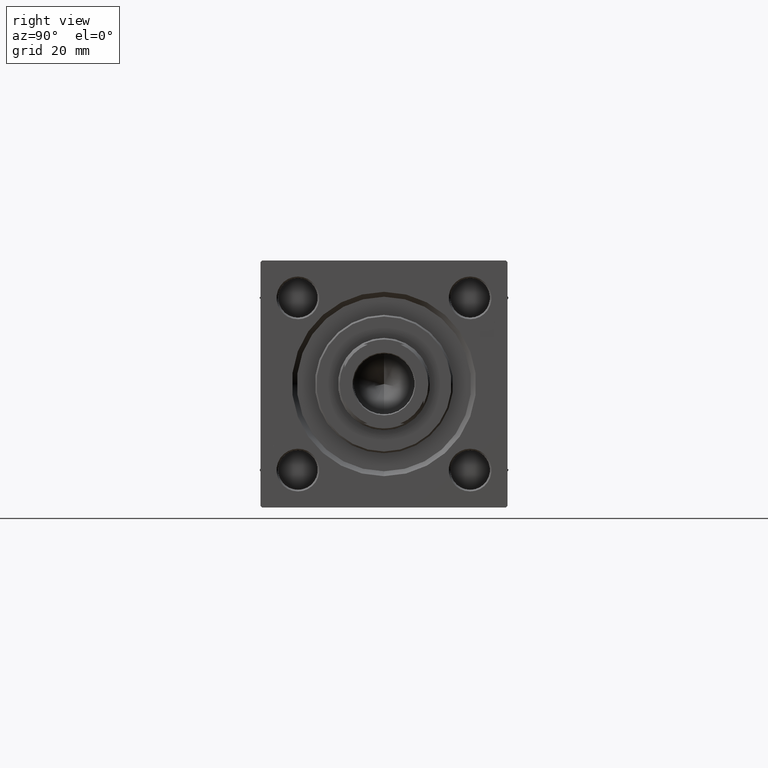
[diagram: clean part render]
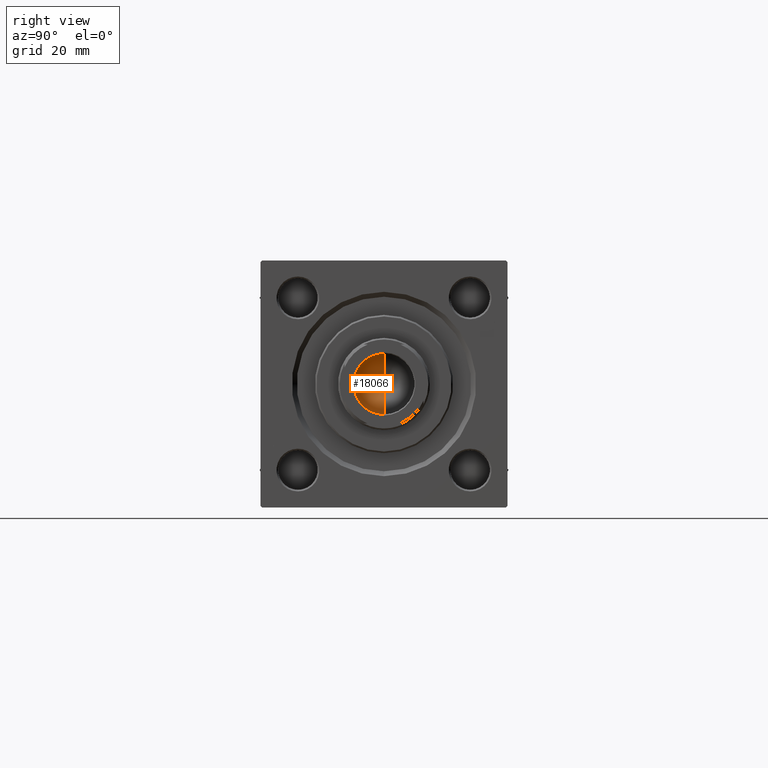
[diagram: same view with one face highlighted and labeled with its STEP entity id]
A machine part, right view. The second image highlights one B-rep face of the part: STEP entity #18066.
In plain terms, the highlighted conical surface has half-angle 59 deg.
Its self-contained STEP definition (entity closure, byte-faithful):
#1979 = CARTESIAN_POINT ( 'NONE',  ( -9.249999999999994671, 1.132798289211300909E-15, 107.0000000000000142 ) ) ;
#2951 = EDGE_CURVE ( 'NONE', #29311, #38357, #19789, .T. ) ;
#4326 = DIRECTION ( 'NONE',  ( 1.000000000000000000, 0.000000000000000000, 0.000000000000000000 ) ) ;
#5658 = DIRECTION ( 'NONE',  ( 1.000000000000000000, 0.000000000000000000, 0.000000000000000000 ) ) ;
#8461 = VECTOR ( 'NONE', #36754, 1000.000000000000000 ) ;
#8473 = CARTESIAN_POINT ( 'NONE',  ( -1.063698371622866236E-14, 0.000000000000000000, 101.4420392739950785 ) ) ;
#9361 = CARTESIAN_POINT ( 'NONE',  ( -9.249999999999994671, 1.132798289211300909E-15, 107.0000000000000142 ) ) ;
#9593 = DIRECTION ( 'NONE',  ( 0.8571673007021117785, 0.000000000000000000, 0.5150380749100550437 ) ) ;
#10485 = ORIENTED_EDGE ( 'NONE', *, *, #48382, .T. ) ;
#13478 = VECTOR ( 'NONE', #9593, 1000.000000000000000 ) ;
#16349 = DIRECTION ( 'NONE',  ( -0.000000000000000000, -0.000000000000000000, 1.000000000000000000 ) ) ;
#16445 = VERTEX_POINT ( 'NONE', #9361 ) ;
#16922 = ORIENTED_EDGE ( 'NONE', *, *, #44727, .F. ) ;
#18066 = ADVANCED_FACE ( 'NONE', ( #20914 ), #45442, .F. ) ;
#19789 = LINE ( 'NONE', #35253, #13478 ) ;
#19853 = ORIENTED_EDGE ( 'NONE', *, *, #2951, .T. ) ;
#20762 = CIRCLE ( 'NONE', #41005, 9.249999999999994671 ) ;
#20914 = FACE_OUTER_BOUND ( 'NONE', #46101, .T. ) ;
#23587 = AXIS2_PLACEMENT_3D ( 'NONE', #32823, #16349, #5658 ) ;
#28429 = CARTESIAN_POINT ( 'NONE',  ( 0.000000000000000000, 0.000000000000000000, 107.0000000000000142 ) ) ;
#28729 = CARTESIAN_POINT ( 'NONE',  ( 9.249999999999994671, 0.000000000000000000, 107.0000000000000142 ) ) ;
#29311 = VERTEX_POINT ( 'NONE', #8473 ) ;
#32823 = CARTESIAN_POINT ( 'NONE',  ( 0.000000000000000000, 0.000000000000000000, 107.0000000000000142 ) ) ;
#35253 = CARTESIAN_POINT ( 'NONE',  ( 9.249999999999994671, 0.000000000000000000, 107.0000000000000142 ) ) ;
#36754 = DIRECTION ( 'NONE',  ( -0.8571673007021117785, 1.049727191138617956E-16, 0.5150380749100550437 ) ) ;
#38357 = VERTEX_POINT ( 'NONE', #28729 ) ;
#40560 = LINE ( 'NONE', #1979, #8461 ) ;
#41005 = AXIS2_PLACEMENT_3D ( 'NONE', #28429, #43646, #4326 ) ;
#43646 = DIRECTION ( 'NONE',  ( -0.000000000000000000, -0.000000000000000000, 1.000000000000000000 ) ) ;
#44727 = EDGE_CURVE ( 'NONE', #29311, #16445, #40560, .T. ) ;
#45442 = CONICAL_SURFACE ( 'NONE', #23587, 9.249999999999994671, 1.029744258676653423 ) ;
#46101 = EDGE_LOOP ( 'NONE', ( #16922, #19853, #10485 ) ) ;
#48382 = EDGE_CURVE ( 'NONE', #38357, #16445, #20762, .T. ) ;